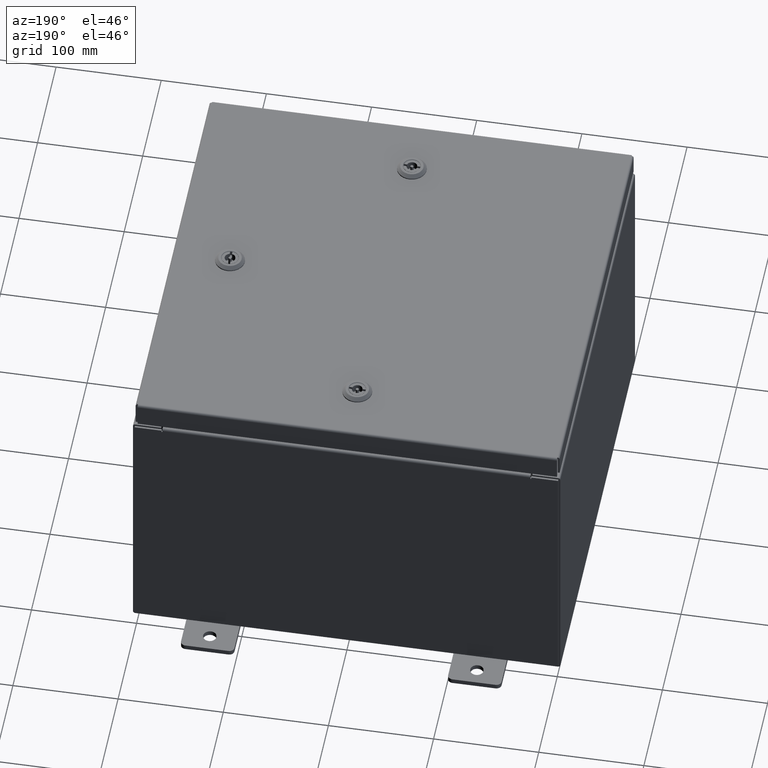
[diagram: clean part render]
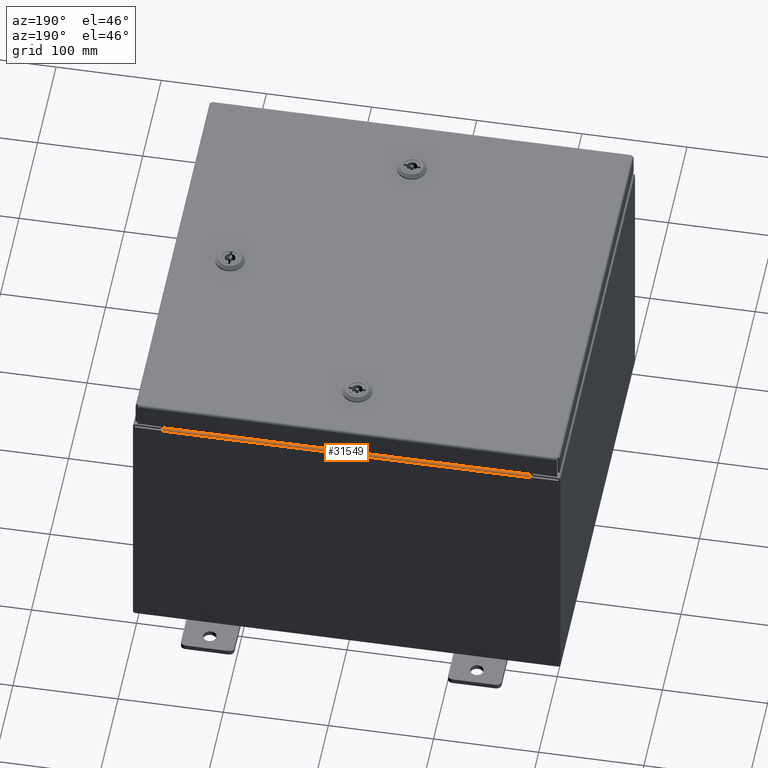
[diagram: same view with one face highlighted and labeled with its STEP entity id]
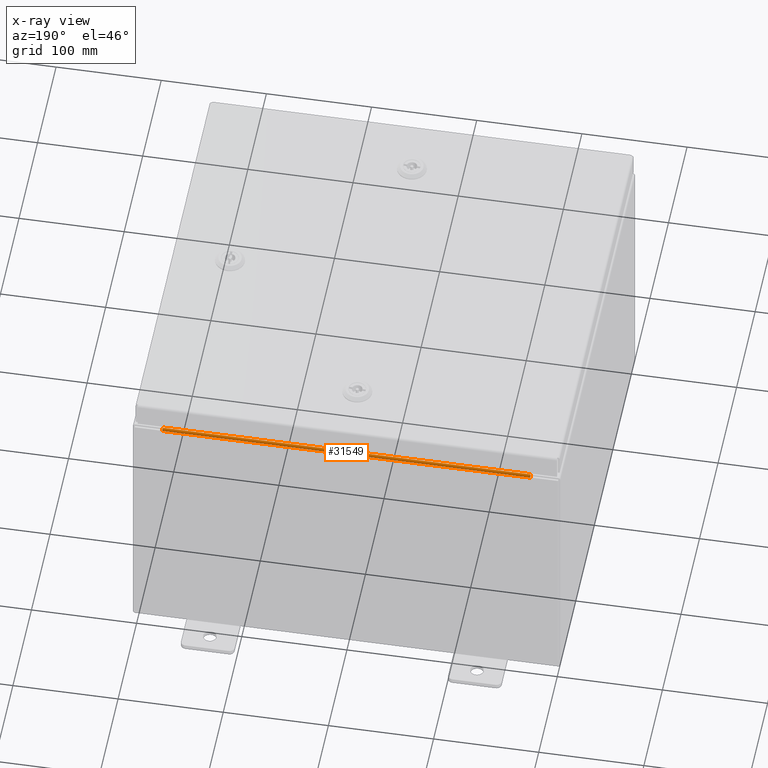
[diagram: x-ray of the same camera — body ghosted, the highlighted face saturated]
A machine part, auxiliary view. The second image highlights one B-rep face of the part: STEP entity #31549.
The next image is the same camera in x-ray: the body ghosted, the highlighted face saturated — about 0% of this face is hidden behind the body in this view.
In plain terms, the highlighted cylindrical surface (edge-blend (fillet) strip) has radius 2.2276 mm, axis along (-1, -0, -0).
Its self-contained STEP definition (entity closure, byte-faithful):
#1854 = ORIENTED_EDGE ( 'NONE', *, *, #50796, .F. ) ;
#3836 = DIRECTION ( 'NONE',  ( -1.000000000000000000, 0.0000000000000000000, 0.0000000000000000000 ) ) ;
#4684 = CARTESIAN_POINT ( 'NONE',  ( -6.887200000000002700, -0.08770000000000026400, 4.912300000000001000 ) ) ;
#8935 = FACE_OUTER_BOUND ( 'NONE', #58749, .T. ) ;
#9059 = AXIS2_PLACEMENT_3D ( 'NONE', #4684, #62157, #38087 ) ;
#13927 = DIRECTION ( 'NONE',  ( 1.000000000000000000, 0.0000000000000000000, 0.0000000000000000000 ) ) ;
#17694 = LINE ( 'NONE', #28954, #22223 ) ;
#19601 = VECTOR ( 'NONE', #54326, 39.37007874015748100 ) ;
#20105 = VERTEX_POINT ( 'NONE', #48896 ) ;
#20575 = CARTESIAN_POINT ( 'NONE',  ( -6.887200000000002700, -1.707404996040164500E-016, 4.912300000000001000 ) ) ;
#22151 = CARTESIAN_POINT ( 'NONE',  ( -6.887200000000001800, -0.08770000000000026400, 4.912300000000001000 ) ) ;
#22223 = VECTOR ( 'NONE', #3836, 39.37007874015748100 ) ;
#24035 = CARTESIAN_POINT ( 'NONE',  ( -6.887200000000002700, -0.08770000000000026400, 5.000000000000000900 ) ) ;
#26888 = ORIENTED_EDGE ( 'NONE', *, *, #58563, .F. ) ;
#27011 = DIRECTION ( 'NONE',  ( 0.0000000000000000000, 0.0000000000000000000, 1.000000000000000000 ) ) ;
#28524 = ORIENTED_EDGE ( 'NONE', *, *, #47943, .F. ) ;
#28954 = CARTESIAN_POINT ( 'NONE',  ( 0.0000000000000000000, -0.08770000000000026400, 5.000000000000000900 ) ) ;
#30746 = ORIENTED_EDGE ( 'NONE', *, *, #43072, .F. ) ;
#31549 = ADVANCED_FACE ( 'NONE', ( #8935 ), #58765, .T. ) ;
#32029 = CIRCLE ( 'NONE', #60776, 0.08770000000000026400 ) ;
#32430 = LINE ( 'NONE', #20575, #19601 ) ;
#37989 = VERTEX_POINT ( 'NONE', #57351 ) ;
#38087 = DIRECTION ( 'NONE',  ( 0.0000000000000000000, 3.309679011708404900E-015, 1.000000000000000000 ) ) ;
#42685 = CARTESIAN_POINT ( 'NONE',  ( 6.887199999999996400, -0.08769999999999993100, 5.000000000000000900 ) ) ;
#42835 = CARTESIAN_POINT ( 'NONE',  ( 6.887199999999996400, -0.08770000000000026400, 4.912300000000001000 ) ) ;
#43072 = EDGE_CURVE ( 'NONE', #51183, #48659, #17694, .T. ) ;
#47707 = DIRECTION ( 'NONE',  ( 0.0000000000000000000, -1.752183006198567300E-015, 1.000000000000000000 ) ) ;
#47943 = EDGE_CURVE ( 'NONE', #48659, #20105, #54401, .T. ) ;
#48659 = VERTEX_POINT ( 'NONE', #24035 ) ;
#48896 = CARTESIAN_POINT ( 'NONE',  ( -6.887200000000001800, -1.707404996040164500E-016, 4.912300000000001000 ) ) ;
#50796 = EDGE_CURVE ( 'NONE', #20105, #37989, #32430, .T. ) ;
#51183 = VERTEX_POINT ( 'NONE', #42685 ) ;
#54326 = DIRECTION ( 'NONE',  ( 1.000000000000000000, 0.0000000000000000000, 0.0000000000000000000 ) ) ;
#54401 = CIRCLE ( 'NONE', #61927, 0.08770000000000026400 ) ;
#55929 = DIRECTION ( 'NONE',  ( -1.000000000000000000, -0.0000000000000000000, -0.0000000000000000000 ) ) ;
#57351 = CARTESIAN_POINT ( 'NONE',  ( 6.887199999999996400, 0.0000000000000000000, 4.912300000000001000 ) ) ;
#58563 = EDGE_CURVE ( 'NONE', #37989, #51183, #32029, .T. ) ;
#58749 = EDGE_LOOP ( 'NONE', ( #1854, #28524, #30746, #26888 ) ) ;
#58765 = CYLINDRICAL_SURFACE ( 'NONE', #9059, 0.08770000000000026400 ) ;
#60776 = AXIS2_PLACEMENT_3D ( 'NONE', #42835, #13927, #47707 ) ;
#61927 = AXIS2_PLACEMENT_3D ( 'NONE', #22151, #55929, #27011 ) ;
#62157 = DIRECTION ( 'NONE',  ( -1.000000000000000000, -0.0000000000000000000, -0.0000000000000000000 ) ) ;